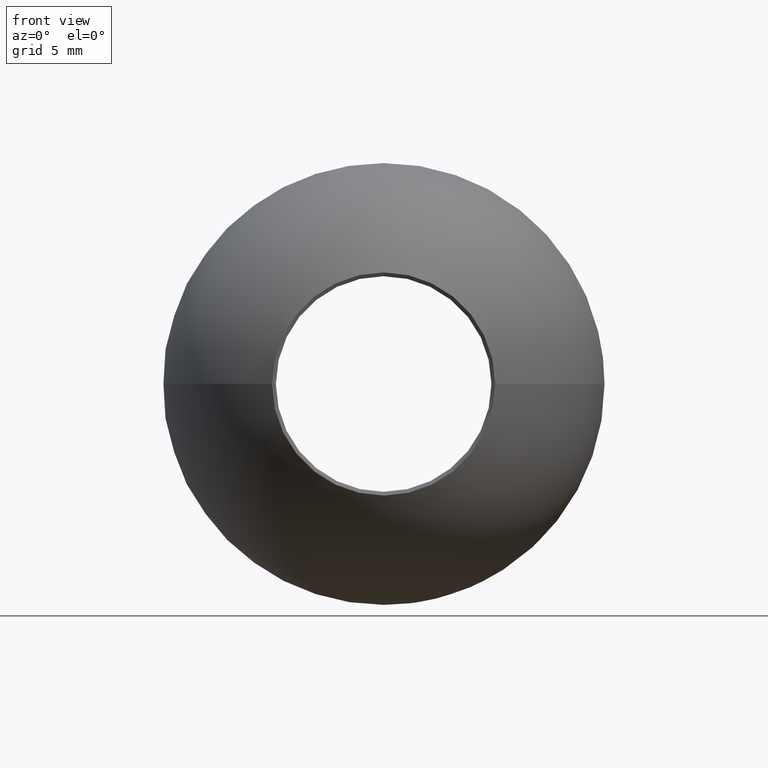
[diagram: clean part render]
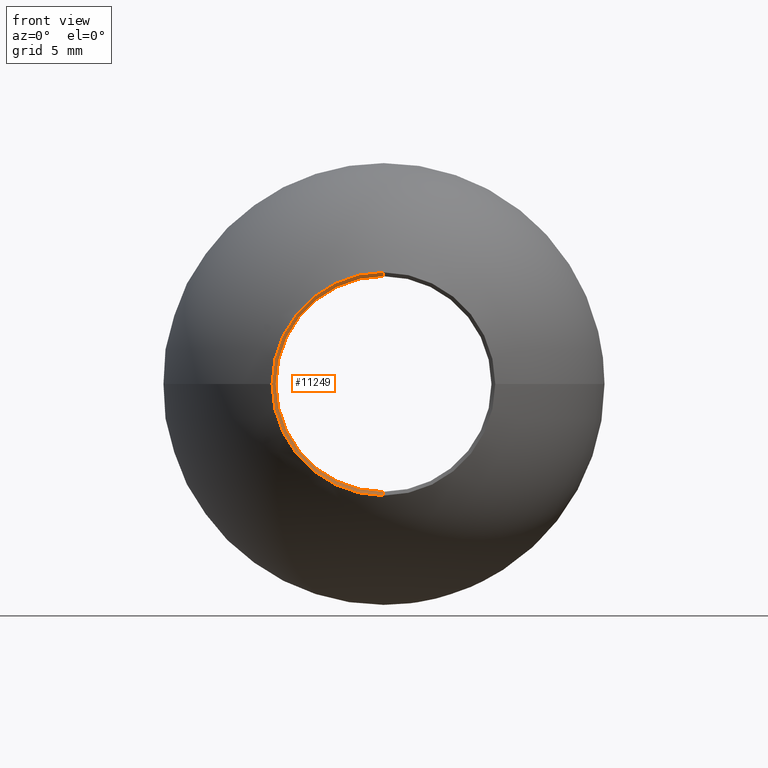
[diagram: same view with one face highlighted and labeled with its STEP entity id]
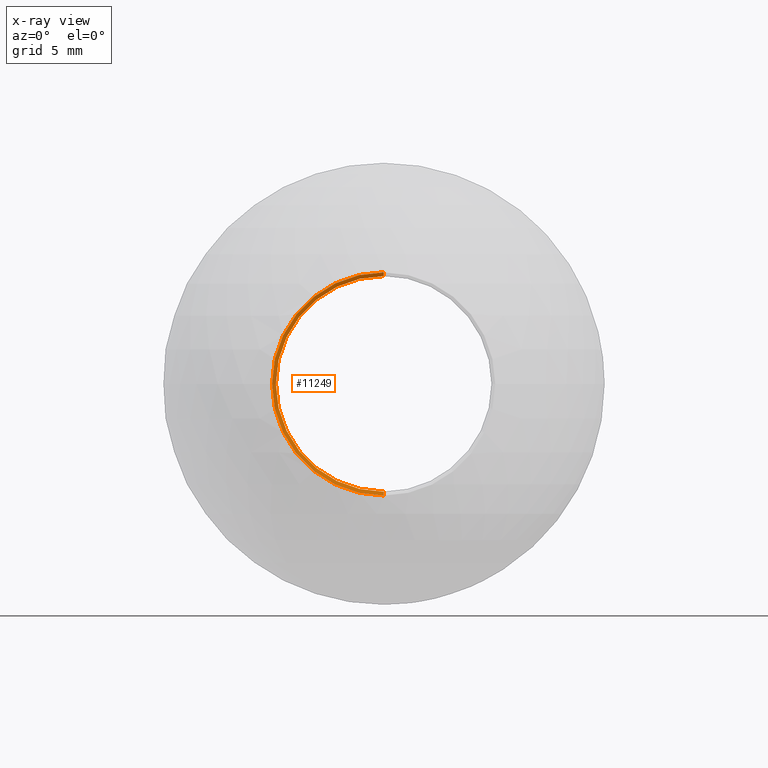
[diagram: x-ray of the same camera — body ghosted, the highlighted face saturated]
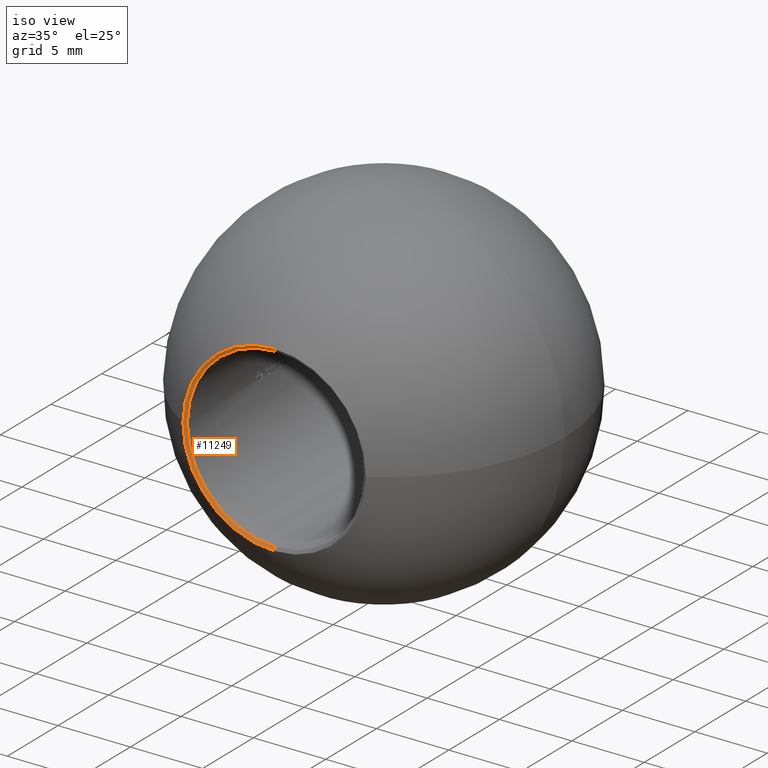
[diagram: same view with one face highlighted and labeled with its STEP entity id]
A machine part, front view. The second image highlights one B-rep face of the part: STEP entity #11249.
The next image is the same camera in x-ray: the body ghosted, the highlighted face saturated — about 0% of this face is hidden behind the body in this view.
A second angle (iso view) of the same face is appended — the face is thin or edge-on in the first view.
In plain terms, the highlighted conical surface has half-angle 59.605 deg.
Its self-contained STEP definition (entity closure, byte-faithful):
#185 = CARTESIAN_POINT ( 'NONE',  ( 0.0000000000000000000, -10.78709570086434200, 0.0000000000000000000 ) ) ;
#592 = VERTEX_POINT ( 'NONE', #3030 ) ;
#957 = VECTOR ( 'NONE', #9450, 999.9999999999998900 ) ;
#1031 = EDGE_CURVE ( 'NONE', #592, #1299, #11805, .T. ) ;
#1181 = ORIENTED_EDGE ( 'NONE', *, *, #8626, .F. ) ;
#1258 = CARTESIAN_POINT ( 'NONE',  ( 1.836970198721029600E-015, -10.78709570086434000, -6.315739571926163100 ) ) ;
#1299 = VERTEX_POINT ( 'NONE', #1466 ) ;
#1331 = CARTESIAN_POINT ( 'NONE',  ( 2.584004746200915000E-015, -10.66054535758868300, -6.100000000000000500 ) ) ;
#1466 = CARTESIAN_POINT ( 'NONE',  ( -6.315739571926164900, -10.78709570086434200, -7.734550251007653000E-016 ) ) ;
#1521 = DIRECTION ( 'NONE',  ( -0.0000000000000000000, -1.000000000000000000, -0.0000000000000000000 ) ) ;
#1638 = VERTEX_POINT ( 'NONE', #8249 ) ;
#2134 = CARTESIAN_POINT ( 'NONE',  ( 1.836970198721029600E-015, -10.66054535758868300, 0.0000000000000000000 ) ) ;
#2211 = DIRECTION ( 'NONE',  ( 0.0000000000000000000, 1.000000000000000000, 0.0000000000000000000 ) ) ;
#2212 = CIRCLE ( 'NONE', #2316, 6.100000000000000500 ) ;
#2316 = AXIS2_PLACEMENT_3D ( 'NONE', #2134, #3049, #4020 ) ;
#2335 = DIRECTION ( 'NONE',  ( 0.0000000000000000000, 0.0000000000000000000, 1.000000000000000000 ) ) ;
#2442 = ORIENTED_EDGE ( 'NONE', *, *, #1031, .F. ) ;
#3030 = CARTESIAN_POINT ( 'NONE',  ( 1.836970198721029600E-015, -10.78709570086434200, -6.315739571926165800 ) ) ;
#3049 = DIRECTION ( 'NONE',  ( -0.0000000000000000000, -1.000000000000000000, -0.0000000000000000000 ) ) ;
#3468 = ORIENTED_EDGE ( 'NONE', *, *, #10845, .T. ) ;
#3567 = VECTOR ( 'NONE', #6797, 999.9999999999998900 ) ;
#3582 = AXIS2_PLACEMENT_3D ( 'NONE', #185, #5656, #7345 ) ;
#3839 = FACE_OUTER_BOUND ( 'NONE', #5691, .T. ) ;
#4000 = CONICAL_SURFACE ( 'NONE', #5335, 6.315739571926163100, 1.040296623475947200 ) ;
#4020 = DIRECTION ( 'NONE',  ( 0.0000000000000000000, 0.0000000000000000000, 1.000000000000000000 ) ) ;
#4527 = VERTEX_POINT ( 'NONE', #6500 ) ;
#4876 = EDGE_CURVE ( 'NONE', #4527, #4978, #2212, .T. ) ;
#4978 = VERTEX_POINT ( 'NONE', #1331 ) ;
#5155 = CARTESIAN_POINT ( 'NONE',  ( 1.836970198721029600E-015, -10.78709570086434000, 0.0000000000000000000 ) ) ;
#5306 = LINE ( 'NONE', #8537, #3567 ) ;
#5335 = AXIS2_PLACEMENT_3D ( 'NONE', #5155, #1521, #6061 ) ;
#5656 = DIRECTION ( 'NONE',  ( 0.0000000000000000000, 1.000000000000000000, 0.0000000000000000000 ) ) ;
#5691 = EDGE_LOOP ( 'NONE', ( #9831, #3468, #6468, #2442, #1181 ) ) ;
#6061 = DIRECTION ( 'NONE',  ( 0.0000000000000000000, 0.0000000000000000000, -1.000000000000000000 ) ) ;
#6468 = ORIENTED_EDGE ( 'NONE', *, *, #8347, .F. ) ;
#6500 = CARTESIAN_POINT ( 'NONE',  ( 1.836970198721029600E-015, -10.66054535758868300, 6.100000000000000500 ) ) ;
#6797 = DIRECTION ( 'NONE',  ( 1.056324419059031100E-016, -0.5059644256269555400, 0.8625543461139043600 ) ) ;
#6963 = LINE ( 'NONE', #1258, #957 ) ;
#7345 = DIRECTION ( 'NONE',  ( 0.0000000000000000000, 0.0000000000000000000, 1.000000000000000000 ) ) ;
#8249 = CARTESIAN_POINT ( 'NONE',  ( 2.610425223821795400E-015, -10.78709570086434200, 6.315739571926165800 ) ) ;
#8347 = EDGE_CURVE ( 'NONE', #1299, #1638, #10669, .T. ) ;
#8537 = CARTESIAN_POINT ( 'NONE',  ( 2.610425223821795000E-015, -10.78709570086434000, 6.315739571926163100 ) ) ;
#8626 = EDGE_CURVE ( 'NONE', #4978, #592, #6963, .T. ) ;
#9450 = DIRECTION ( 'NONE',  ( 0.0000000000000000000, -0.5059644256269555400, -0.8625543461139043600 ) ) ;
#9831 = ORIENTED_EDGE ( 'NONE', *, *, #4876, .F. ) ;
#10629 = AXIS2_PLACEMENT_3D ( 'NONE', #11356, #2211, #2335 ) ;
#10669 = CIRCLE ( 'NONE', #10629, 6.315739571926164000 ) ;
#10845 = EDGE_CURVE ( 'NONE', #4527, #1638, #5306, .T. ) ;
#11249 = ADVANCED_FACE ( 'NONE', ( #3839 ), #4000, .F. ) ;
#11356 = CARTESIAN_POINT ( 'NONE',  ( 0.0000000000000000000, -10.78709570086434200, 0.0000000000000000000 ) ) ;
#11805 = CIRCLE ( 'NONE', #3582, 6.315739571926164000 ) ;